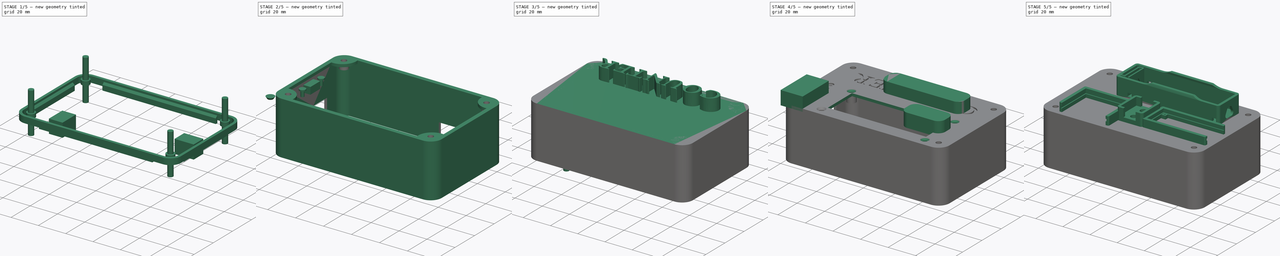
[diagram: build sequence overview — one tinted view per stage of 5, left to right]
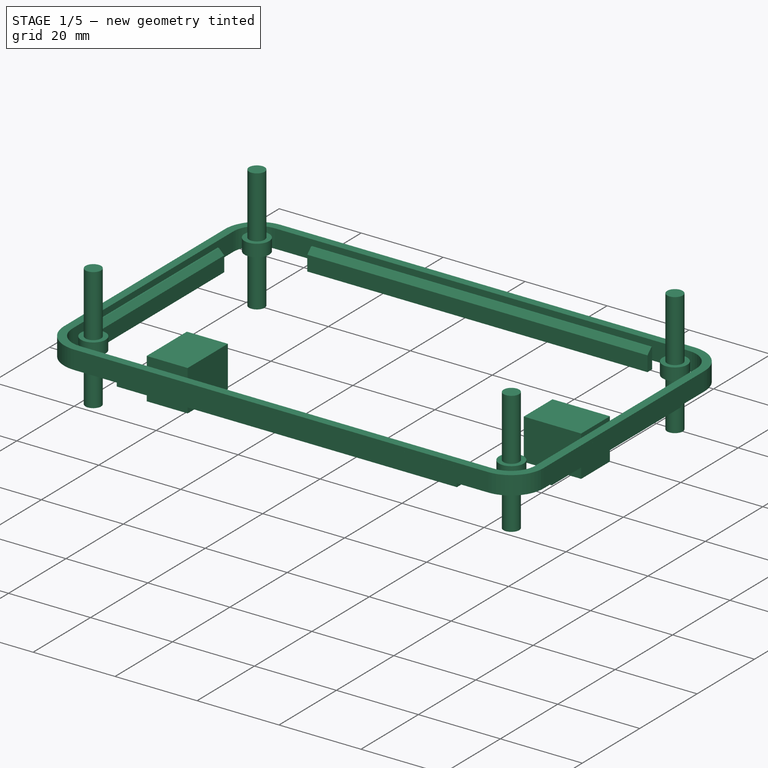
[diagram: stage 1 of 5 — iso view after this stage's code; geometry added in this stage tinted green]
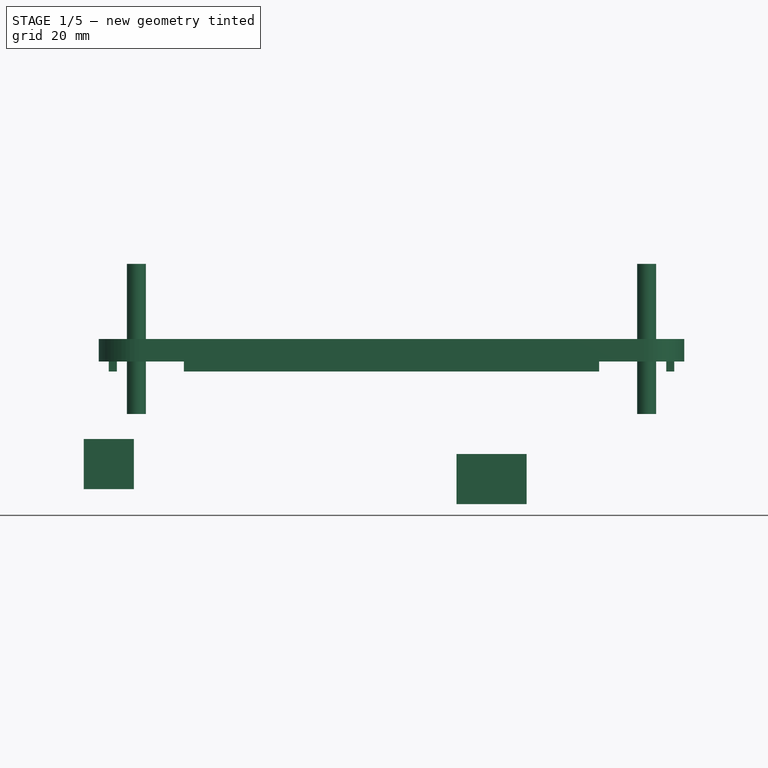
[diagram: stage 1 of 5 — front view after this stage's code; geometry added in this stage tinted green]
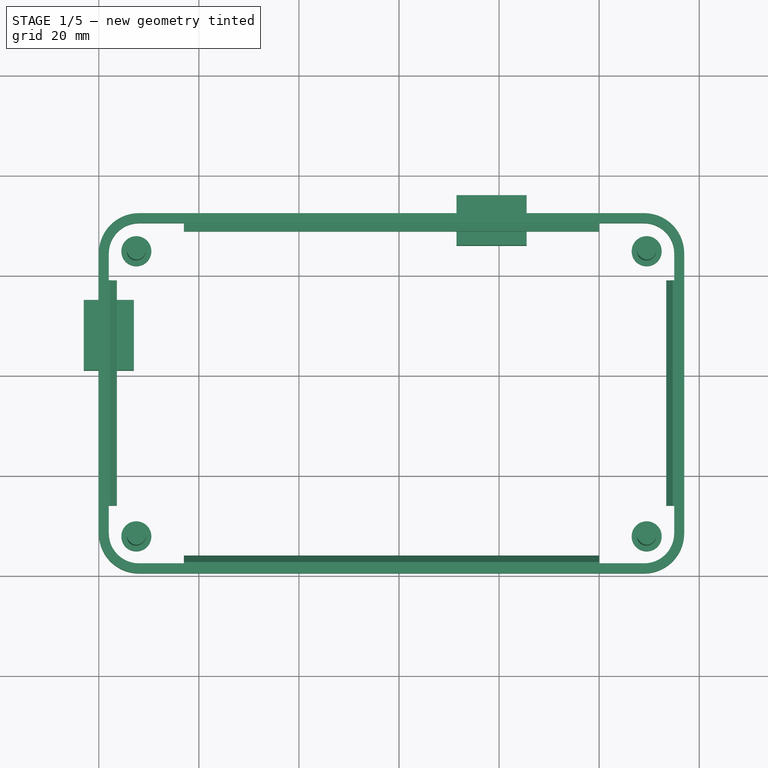
[diagram: stage 1 of 5 — top view after this stage's code; geometry added in this stage tinted green]
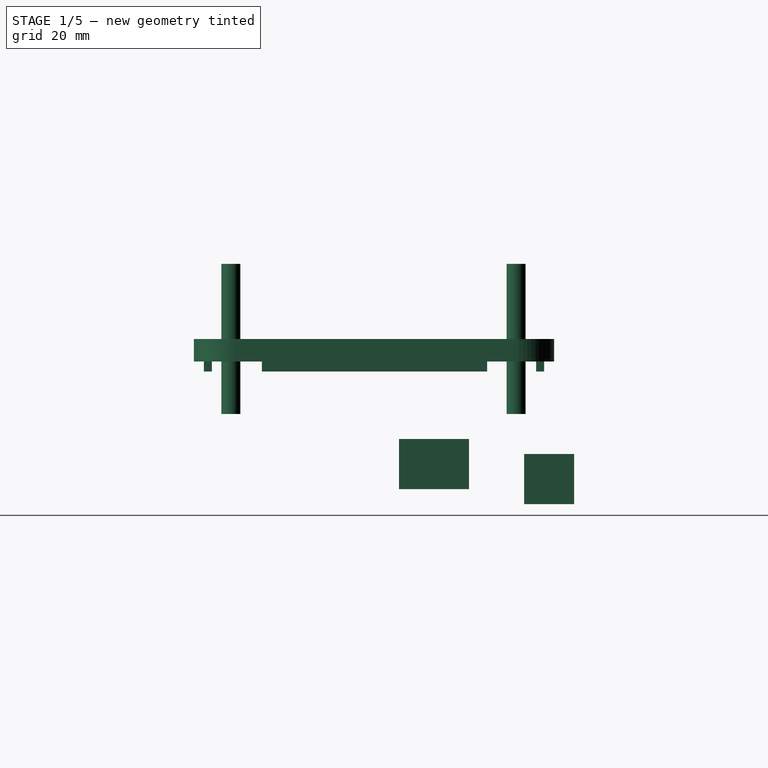
[diagram: stage 1 of 5 — right view after this stage's code; geometry added in this stage tinted green]
FCSTD DOCUMENT  (FreeCAD 0.19R)
Label: top
License: All rights reserved
LicenseURL: http://en.wikipedia.org/wiki/All_rights_reserved
objects: Part::Feature×15, Part::FeaturePython×15, Part::MultiFuse×8, Part::Box×6, Part::Cylinder×5, Part::Cut×5, PartDesign::Pad×4, PartDesign::Body×4, Part::Fillet×4, PartDesign::FeatureBase×3, Sketcher::SketchObject×3, Part::Plane×2, App::DocumentObjectGroup×2, App::Part×2, PartDesign::ShapeBinder×1, Part::Part2DObjectPython×1, Part::Extrusion×1, Part::Cone×1
note: 76 computed .brp shape members not serialized (recipe doc carries the construction recipe); baked Part::Feature solids carry a one-line shape summary decoded from their .brp

FEATURE [Part::Feature] Top_v2001001001
  Placement = pos=(99,-23,-24.5) rot=(0,0,1;0rad)
  shape: bbox 117 x 72 x 22 mm, 1170 faces, 0 solids (baked)
FEATURE [Part::Feature] Fusion015001  label="arduino nano mockup"
  Placement = pos=(-75,43,28) rot=(0,0,1;3.14159rad)
  shape: bbox 46.3 x 18 x 18.5 mm, 701 faces (baked)
FEATURE [Part::Plane] Plane
  AttacherType = Attacher::AttachEngine3D
  Length = 200
  Width = 100
FEATURE [Part::FeaturePython] Slice  # WARN: FeaturePython — macro-defined, semantics opaque (R4)
  Base = -> Top_v2001001001
  Mode = 1
  Tolerance = 0
  Tools = -> [Plane]
FEATURE [Part::FeaturePython] Slice_child0  label="Slice.0"  # WARN: FeaturePython — macro-defined, semantics opaque (R4)
  Base = -> Slice
  FilterType = 1
  Invert = false
  OverrideMaxVal = 0
  WindowFrom = 80
  WindowTo = 100
  items = 0
FEATURE [Part::FeaturePython] Slice_child1  label="Slice.1"  # WARN: FeaturePython — macro-defined, semantics opaque (R4)
  Base = -> Slice
  FilterType = 1
  Invert = false
  OverrideMaxVal = 0
  WindowFrom = 80
  WindowTo = 100
  items = 1
FEATURE [App::DocumentObjectGroup] GrExplode_Slice  label="Exploded Slice"
  Group = -> [Slice_child0,Slice_child1]
FEATURE [Part::Feature] Slice_child1001  label="middle perimeter"
  shape: bbox 117 x 72 x 6.5 mm, 141 faces, 0 solids (baked)
FEATURE [Part::Feature] Slice_child1001_Face19
  Placement = pos=(99,-23,-20) rot=(0,0,1;0rad)
  shape: bbox 117 x 72 x 2e-07 mm, 1 faces, 0 solids (baked)
FEATURE [Part::FeaturePython] Solid  label="middle perimeter solid"  # WARN: FeaturePython — macro-defined, semantics opaque (R4)
  Faces = -> [Slice_child1001,Slice_child1001_Face19]
  ShapeStatus = Solid
FEATURE [PartDesign::FeatureBase] BaseFeature
  BaseFeature = -> Solid
FEATURE [PartDesign::Body] Body  label="middle perimeter plane"
  BaseFeature = -> Solid
  Group = -> [BaseFeature,Sketch,Pad]
  Origin = -> Origin
  Tip = -> Pad
FEATURE [Part::Cylinder] Cylinder  label="bolt hole"
  Angle = 360
  AttacherType = Attacher::AttachEngine3D
  Height = 30
  Placement = pos=(7.5,7.4,-15) rot=(0,0,1;0rad)
  Radius = 1.9
  expr: .Placement.Base.z = -Height / 2
FEATURE [App::Part] Part001  label="middle plate"
  Group = -> [Cut002002007018]
  Origin = -> Origin003
FEATURE [Part::Plane] Plane001
  AttacherType = Attacher::AttachEngine3D
  Length = 200
  Placement = pos=(0,0,-1) rot=(0,0,1;0rad)
  Width = 100
FEATURE [Part::FeaturePython] Slice001  # WARN: FeaturePython — macro-defined, semantics opaque (R4)
  Base = -> Solid
  Mode = 1
  Tolerance = 0
  Tools = -> [Plane001]
FEATURE [PartDesign::Body] Body003
  BaseFeature = -> Clone001
  Group = -> [BaseFeature002,Sketch003,Pad003]
  Origin = -> Origin005
  Tip = -> Pad003
FEATURE [Part::Cylinder] Cylinder004  label="bolt stand001"
  Angle = 360
  AttacherType = Attacher::AttachEngine3D
  Height = 3
  Placement = pos=(7.5,7.4,0) rot=(0,0,1;0rad)
  Radius = 3
FEATURE [Part::FeaturePython] Array004  label="bolt stand array001"  # Draft array (typed FeaturePython)
  Angle = 360
  ArrayType = 0
  Axis = (0,0,1)
  Base = -> Cylinder004
  Center = (0,0,0)
  Count = 4
  ExpandArray = false
  Fuse = false
  IntervalAxis = (0,0,0)
  IntervalX = (102,0,0)
  IntervalY = (0,57,0)
  IntervalZ = (0,0,100)
  NumberCircles = 3
  NumberPolar = 5
  NumberX = 2
  NumberY = 2
  NumberZ = 1
  Placement = pos=(0,0,-3) rot=(0,0,1;0rad)
  PlacementList = 4 placements: [(7.5,7.4,0),(7.5,64.4,0),(109.5,7.4,0),(109.5,64.4,0)]
  RadialDistance = 50
  ScaleList = (4) [(1,1,1),(1,1,1),(1,1,1),(1,1,1)]
  Symmetry = 1
  TangentialDistance = 25
  expr: .Placement.Base.z = -<<bolt stand001>>.Height
FEATURE [Part::FeaturePython] Array005  label="bolt hole array001"  # Draft array (typed FeaturePython)
  Angle = 360
  ArrayType = 0
  Axis = (0,0,1)
  Base = -> Cylinder
  Center = (0,0,0)
  Count = 4
  ExpandArray = false
  Fuse = false
  IntervalAxis = (0,0,0)
  IntervalX = (102,0,0)
  IntervalY = (0,57,0)
  IntervalZ = (0,0,100)
  NumberCircles = 3
  NumberPolar = 5
  NumberX = 2
  NumberY = 2
  NumberZ = 1
  PlacementList = 4 placements: [(7.5,7.4,-15),(7.5,64.4,-15),(109.5,7.4,-15),(109.5,64.4,-15)]
  RadialDistance = 50
  ScaleList = (4) [(1,1,1),(1,1,1),(1,1,1),(1,1,1)]
  Symmetry = 1
  TangentialDistance = 25
FEATURE [Part::Feature] Solid001  label="middle perimeter solid001"
  Placement = pos=(0,0,-29) rot=(0,0,1;0rad)
  shape: bbox 117 x 72 x 6.5 mm, 142 faces (baked)
FEATURE [Part::Box] Box004  label="arduino usb hole"
  AttacherType = Attacher::AttachEngine3D
  Height = 10
  Length = 10
  Placement = pos=(-3,41,-30) rot=(0,0,1;0rad)
  Width = 14
FEATURE [Part::Box] Box005  label="lion manager hole"
  AttacherType = Attacher::AttachEngine3D
  Height = 10
  Length = 14
  Placement = pos=(71.5,66,-33) rot=(0,0,1;0rad)
  Width = 10
FEATURE [Part::MultiFuse] Fusion015008  label="border hole fusion"
  Shapes = -> [Box004,Array005,Box005]
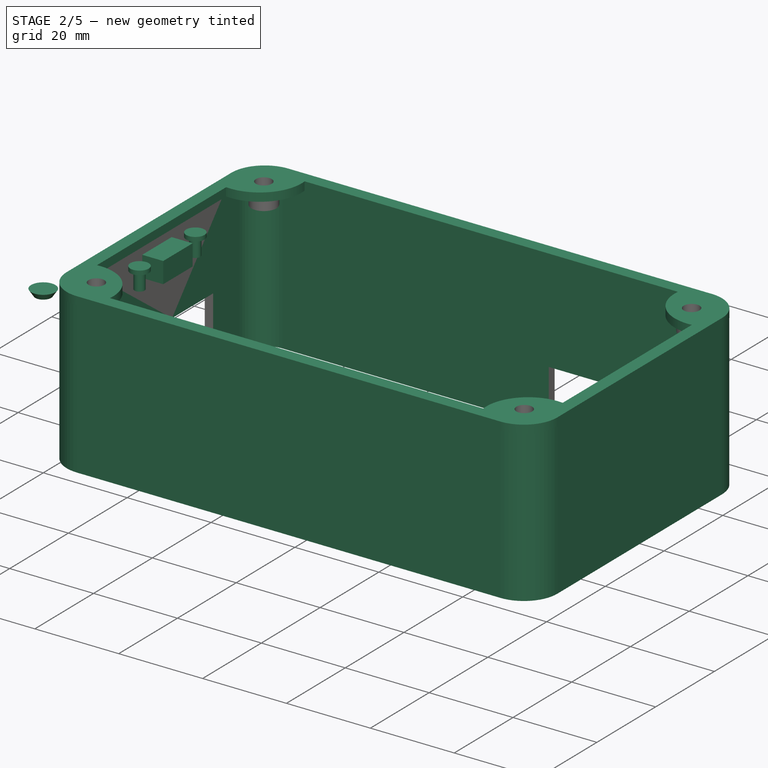
[diagram: stage 2 of 5 — iso view after this stage's code; geometry added in this stage tinted green]
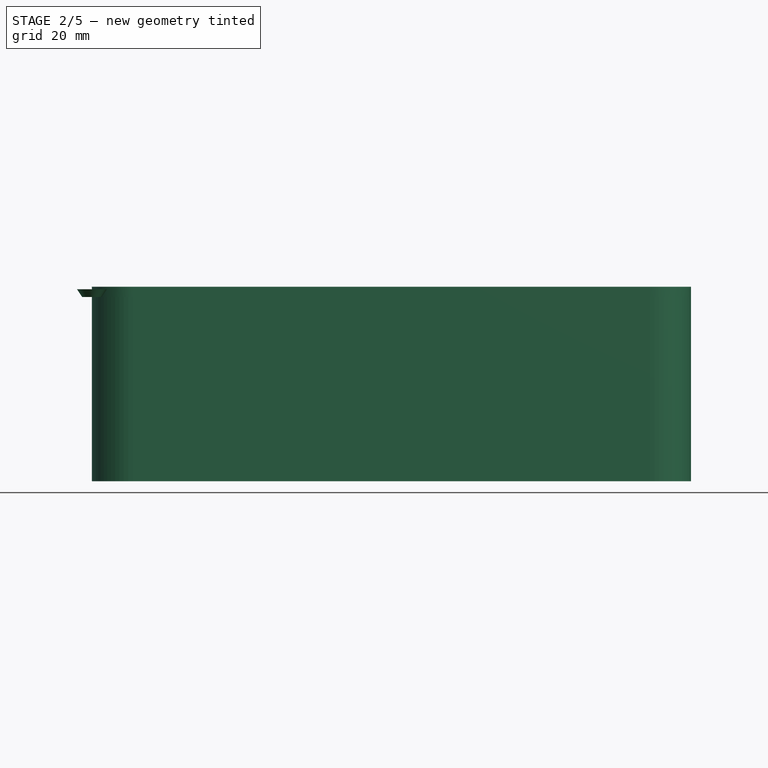
[diagram: stage 2 of 5 — front view after this stage's code; geometry added in this stage tinted green]
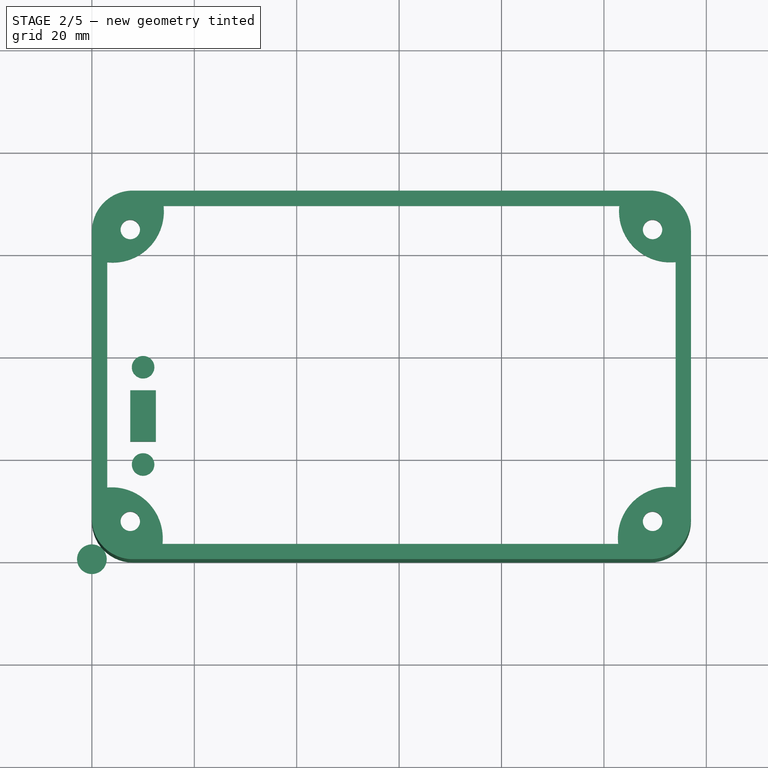
[diagram: stage 2 of 5 — top view after this stage's code; geometry added in this stage tinted green]
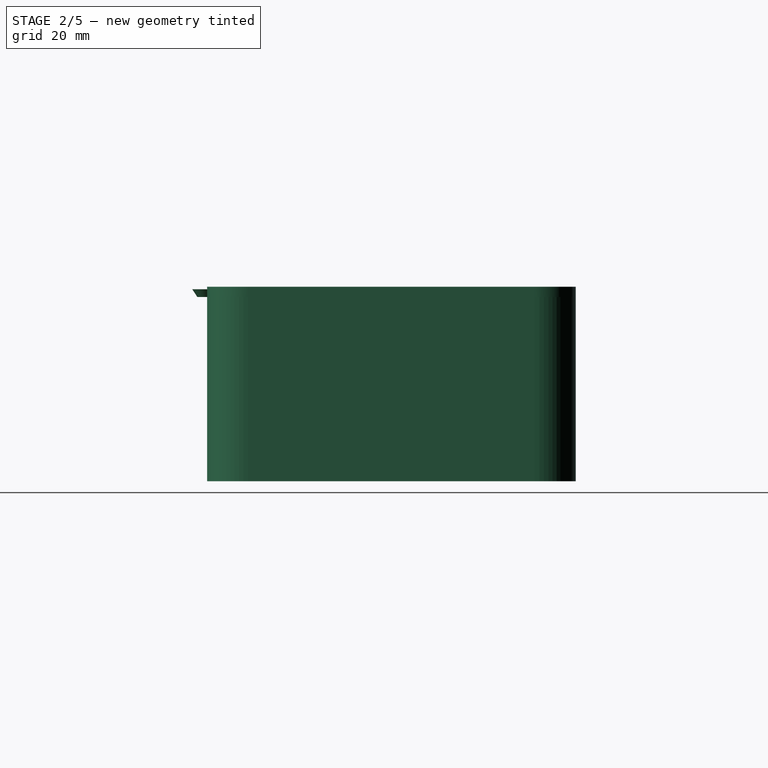
[diagram: stage 2 of 5 — right view after this stage's code; geometry added in this stage tinted green]
FEATURE [Part::FeaturePython] Slice001_child0  label="Slice001.0"  # WARN: FeaturePython — macro-defined, semantics opaque (R4)
  Base = -> Slice001
  FilterType = 1
  Invert = false
  OverrideMaxVal = 0
  WindowFrom = 80
  WindowTo = 100
  items = 0
FEATURE [Part::Feature] Cut002002007020001  label="16x2 lcd mockup"
  Placement = pos=(103,40,-10) rot=(0,0,1;3.14159rad)
  shape: bbox 80.4 x 36.4 x 12.3 mm, 15 faces (baked)
FEATURE [Part::Feature] Cut023001  label="switch holes"
  shape: bbox 5 x 21.4 x 5 mm, 12 faces, 3 solids (baked)
FEATURE [Part::FeaturePython] Clone001  label="scaled middle perimeter"  # Draft clone (typed FeaturePython)
  AttacherType = Attacher::AttachEngine3D
  Fuse = false
  Objects = -> [Slice001_child0]
  Scale = (1,1,36)
FEATURE [Part::Cone] Cone
  Angle = 360
  AttacherType = Attacher::AttachEngine3D
  Height = 1.5
  Radius1 = 1.9
  Radius2 = 2.9
FEATURE [Part::Cylinder] Cylinder003  label="bolt head"
  Angle = 360
  AttacherType = Attacher::AttachEngine3D
  Height = 1
  Placement = pos=(0,-9.5,4) rot=(0,0,1;0rad)
  Radius = 2.2
FEATURE [Part::FeaturePython] Array003  label="bolt head array"  # Draft array (typed FeaturePython)
  Angle = 360
  ArrayType = 0
  Axis = (0,0,1)
  Base = -> Cylinder003
  Center = (0,0,0)
  Count = 2
  ExpandArray = false
  Fuse = false
  IntervalAxis = (0,0,0)
  IntervalX = (100,0,0)
  IntervalY = (0,19,0)
  IntervalZ = (0,0,100)
  NumberCircles = 3
  NumberPolar = 5
  NumberX = 1
  NumberY = 2
  NumberZ = 1
  PlacementList = 2 placements: [(0,-9.5,4),(0,9.5,4)]
  RadialDistance = 50
  ScaleList = (2) [(1,1,1),(1,1,1)]
  Symmetry = 1
  TangentialDistance = 25
FEATURE [Part::MultiFuse] Fusion015006  label="switch holes fusion"
  Placement = pos=(10,28,-3) rot=(0,0,1;3.14159rad)
  Shapes = -> [Cut023001,Array003]
FEATURE [App::Part] Part  label="top part"
  Group = -> [Cut002002007019]
  Origin = -> Origin002
FEATURE [PartDesign::FeatureBase] BaseFeature002
  BaseFeature = -> Clone001
FEATURE [Sketcher::SketchObject] Sketch003
  ExternalGeometry = -> [BaseFeature]
  FullyConstrained = false
  MapMode = 5
  Support = -> [XY_Plane004]
  sketch-geometry (16):
    g0: ArcOfCircle CenterX=8 CenterY=64 CenterZ=0 NormalX=0 NormalY=0 NormalZ=1 AngleXU=0 Radius=8 StartAngle=1.5708 EndAngle=3.14159
    g1: ArcOfCircle CenterX=109 CenterY=64 CenterZ=0 NormalX=0 NormalY=0 NormalZ=1 AngleXU=0 Radius=8 StartAngle=4e-16 EndAngle=1.5708
    g2: ArcOfCircle CenterX=109 CenterY=8 CenterZ=0 NormalX=0 NormalY=0 NormalZ=1 AngleXU=0 Radius=8 StartAngle=4.71239 EndAngle=6.28319
    g3: ArcOfCircle CenterX=8 CenterY=8 CenterZ=0 NormalX=0 NormalY=0 NormalZ=1 AngleXU=0 Radius=8 StartAngle=3.14159 EndAngle=4.71239
    g4: LineSegment StartX=0 StartY=64 StartZ=0 EndX=0 EndY=8 EndZ=0
    g5: LineSegment StartX=8 StartY=0 StartZ=0 EndX=109 EndY=0 EndZ=0
    g6: LineSegment StartX=117 StartY=8 StartZ=0 EndX=117 EndY=64 EndZ=0
    g7: LineSegment StartX=109 StartY=72 StartZ=0 EndX=8 EndY=72 EndZ=0
    g8: LineSegment StartX=3 StartY=58 StartZ=0 EndX=3 EndY=14 EndZ=0
    g9: LineSegment StartX=13.7936 StartY=3 StartZ=0 EndX=102.794 EndY=3 EndZ=0
    g10: LineSegment StartX=114 StartY=14.0532 StartZ=0 EndX=114 EndY=58.0532 EndZ=0
    g11: LineSegment StartX=103 StartY=69 StartZ=0 EndX=14 EndY=69 EndZ=0
    g12: ArcOfCircle CenterX=4.0559 CenterY=67.9441 CenterZ=0 NormalX=0 NormalY=0 NormalZ=1 AngleXU=0 Radius=10 StartAngle=4.6066 EndAngle=6.38897
    g13: ArcOfCircle CenterX=3.84745 CenterY=4.03597 CenterZ=0 NormalX=0 NormalY=0 NormalZ=1 AngleXU=0 Radius=10 StartAngle=6.1794 EndAngle=7.93883
    g14: ArcOfCircle CenterX=112.729 CenterY=4.13428 CenterZ=0 NormalX=0 NormalY=0 NormalZ=1 AngleXU=0 Radius=10 StartAngle=1.44336 EndAngle=3.25527
    g15: ArcOfCircle CenterX=112.95 CenterY=67.9979 CenterZ=0 NormalX=0 NormalY=0 NormalZ=1 AngleXU=0 Radius=10 StartAngle=3.04121 EndAngle=4.81762
  constraints (49):
    c: Tangent(g0,g-3) = 1.5708
    c: Tangent(g0,g-4) = 1.5708
    c: Tangent(g1,g-3) = 1.5708
    c: Tangent(g1,g-6) = 1.5708
    c: Tangent(g3,g-5) = -1.5708
    c: Tangent(g3,g-4) = 1.5708
    c: Tangent(g2,g-6) = 1.5708
    c: Tangent(g2,g-5) = -1.5708
    c: Coincident(g4,g0)
    c: Coincident(g4,g3)
    c: Vertical(g4)
    c: Coincident(g5,g3)
    c: Coincident(g5,g2)
    c: Coincident(g6,g2)
    c: Coincident(g6,g1)
    c: Vertical(g6)
    c: Coincident(g7,g1)
    c: Coincident(g7,g0)
    c: Horizontal(g7)
    c: Vertical(g8)
    c: Vertical(g10)
    c: Horizontal(g11)
    c: Horizontal(g9)
    c: Equal(g9,g11)
    c: Equal(g8,g10)
    c: DistanceX(g0,g11) = 14
    c: DistanceX(g11,g1) = 14
    c: DistanceY(g3,g8) = 14
    c: DistanceY(g8,g0) = 14
    c: DistanceX(g0,g8) = 3
    c: DistanceX(g10,g1) = 3
    c: DistanceY(g11,g0) = 3
    c: DistanceY(g3,g9) = 3
    c: Coincident(g12,g8)
    c: Coincident(g12,g11)
    c: DistanceY(g1,g12) = 3.9441
    c: Coincident(g13,g8)
    c: Coincident(g13,g9)
    c: Coincident(g14,g9)
    c: Coincident(g14,g10)
    c: Coincident(g15,g11)
    c: Coincident(g15,g10)
    c: Radius(g12) = 10
    c: Radius(g13) = 10
    c: Radius(g14) = 10
    c: Radius(g15) = 10
    c: Equal(g12,g15)
    c: Equal(g13,g14)
    c: Equal(g14,g15)
FEATURE [PartDesign::Pad] Pad003
  BaseFeature = -> BaseFeature002
  Direction = (1,1,1)
  Length = 2
  Length2 = 100
  Profile = -> Sketch003
  Type = 0
FEATURE [Part::MultiFuse] Fusion015007  label="border fusion"
  Shapes = -> [Body003,Array004]
FEATURE [Part::Cut] Cut002002007020002  label="border frame cut"
  Base = -> Fusion015007
  Tool = -> Fusion015008
note: 1 file-system path scrubbed to <path> (originals preserved in the JSON sidecar)
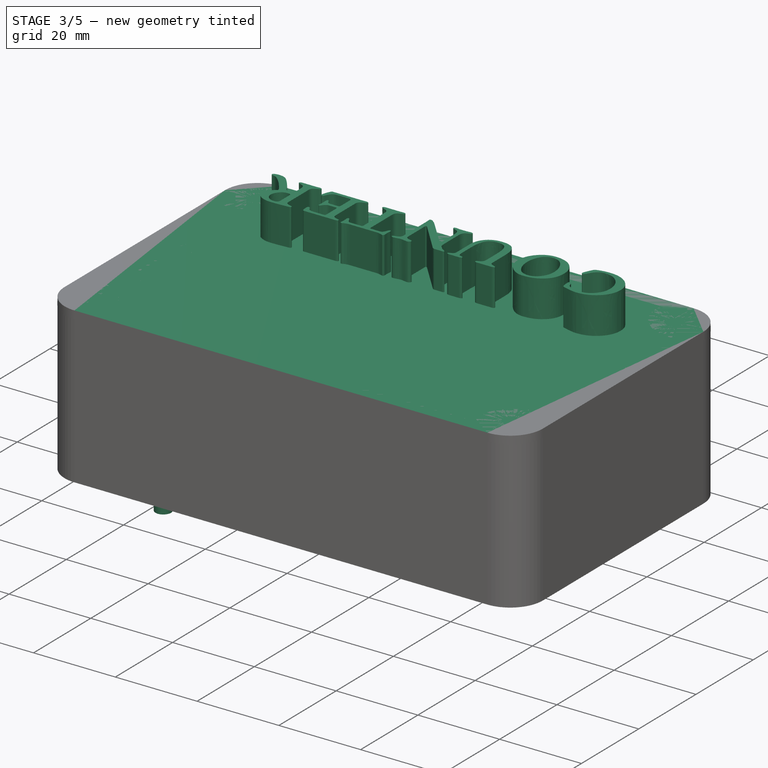
[diagram: stage 3 of 5 — iso view after this stage's code; geometry added in this stage tinted green]
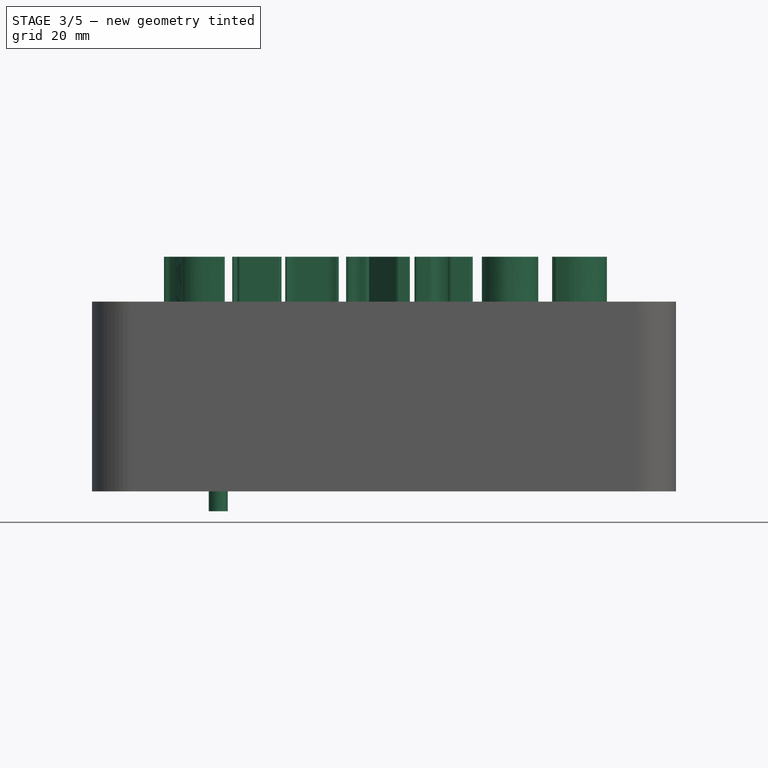
[diagram: stage 3 of 5 — front view after this stage's code; geometry added in this stage tinted green]
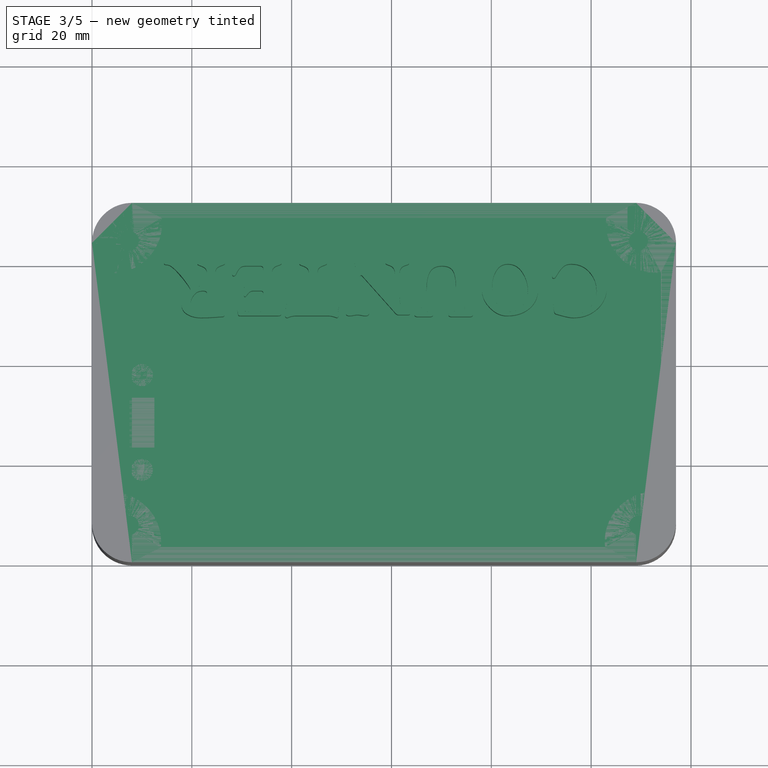
[diagram: stage 3 of 5 — top view after this stage's code; geometry added in this stage tinted green]
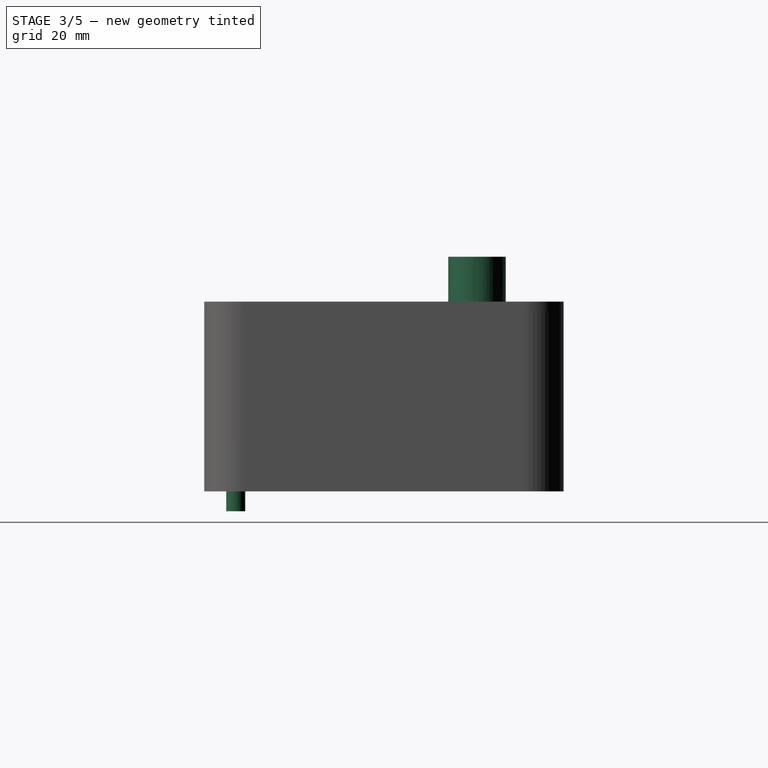
[diagram: stage 3 of 5 — right view after this stage's code; geometry added in this stage tinted green]
FEATURE [App::DocumentObjectGroup] GrExplode_Slice001  label="Exploded middle perimeter solid"
  Group = -> [Slice001_child0,Slice001_child1]
FEATURE [Part::FeaturePython] Clone  label="thin scaled middle perimeter"  # Draft clone (typed FeaturePython)
  AttacherType = Attacher::AttachEngine3D
  Fuse = false
  Objects = -> [Slice001_child0]
  Scale = (1,1,1)
FEATURE [PartDesign::FeatureBase] BaseFeature001
  BaseFeature = -> Clone
FEATURE [PartDesign::Pad] Pad002
  BaseFeature = -> BaseFeature001
  Direction = (1,1,1)
  Length = 2
  Length2 = 100
  Profile = -> Sketch
  Type = 0
FEATURE [PartDesign::Body] Body002  label="middle perimeter plane001"
  BaseFeature = -> Clone
  Group = -> [BaseFeature001,Pad002]
  Origin = -> Origin004
  Tip = -> Pad002
FEATURE [Part::Cylinder] Cylinder001  label="bolt hole001"
  Angle = 360
  AttacherType = Attacher::AttachEngine3D
  Height = 40
  Placement = pos=(0,0,-40) rot=(0,0,1;0rad)
  Radius = 1.9
  expr: .Placement.Base.z = -Height
FEATURE [Part::Cylinder] Cylinder002  label="bolt stand"
  Angle = 360
  AttacherType = Attacher::AttachEngine3D
  Height = 5
  Placement = pos=(25.3,6.3,-5) rot=(0,0,1;0rad)
  Radius = 3.1
  expr: Height = 3mm + Pad002.Length
  expr: .Placement.Base.z = -Height
FEATURE [Part::FeaturePython] Array002  label="lcd bolt hole array001"  # Draft array (typed FeaturePython)
  Angle = 360
  ArrayType = 0
  Axis = (0,0,1)
  Base = -> Cylinder002
  Center = (0,0,0)
  Count = 4
  ExpandArray = false
  Fuse = false
  IntervalAxis = (0,0,0)
  IntervalX = (75,0,0)
  IntervalY = (0,31,0)
  IntervalZ = (0,0,100)
  NumberCircles = 3
  NumberPolar = 5
  NumberX = 2
  NumberY = 2
  NumberZ = 1
  PlacementList = 4 placements: [(25.3,6.3,-5),(25.3,37.3,-5),(100.3,6.3,-5),(100.3,37.3,-5)]
  RadialDistance = 50
  ScaleList = (4) [(1,1,1),(1,1,1),(1,1,1),(1,1,1)]
  Symmetry = 1
  TangentialDistance = 25
FEATURE [Part::MultiFuse] Fusion015004  label="top body fusion"
  Shapes = -> [Body002,Array002]
FEATURE [Part::Part2DObjectPython] ShapeString  # Draft 2D object (typed FeaturePython)
  FontFile = <path>
  Placement = pos=(104,60,1) rot=(0,0,1;3.14159rad)
  Size = 6
  String = COUNTER
  Tracking = 1
FEATURE [Part::Extrusion] Extrude  label="text extrude"
  Base = -> ShapeString
  Dir = (0,0,1)
  DirMode = 2
  FaceMakerClass = Part::FaceMakerBullseye
  LengthFwd = 10
  LengthRev = 0
  Solid = false
  Symmetric = false
FEATURE [Part::MultiFuse] Fusion015005  label="bolt hole fusion"
  Placement = pos=(25.3,6.3,0) rot=(0,0,1;0rad)
  Shapes = -> [Cone,Cylinder001]
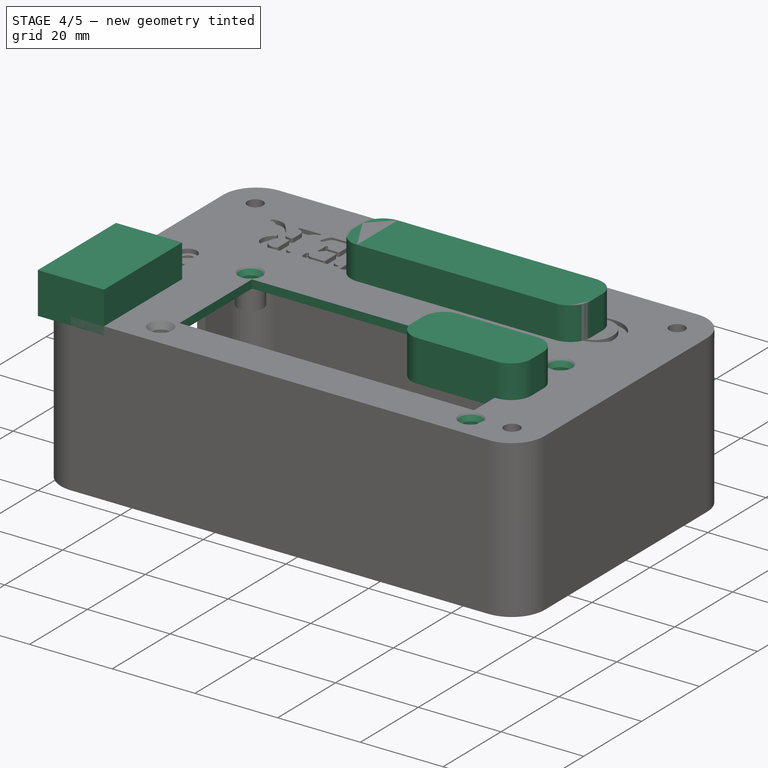
[diagram: stage 4 of 5 — iso view after this stage's code; geometry added in this stage tinted green]
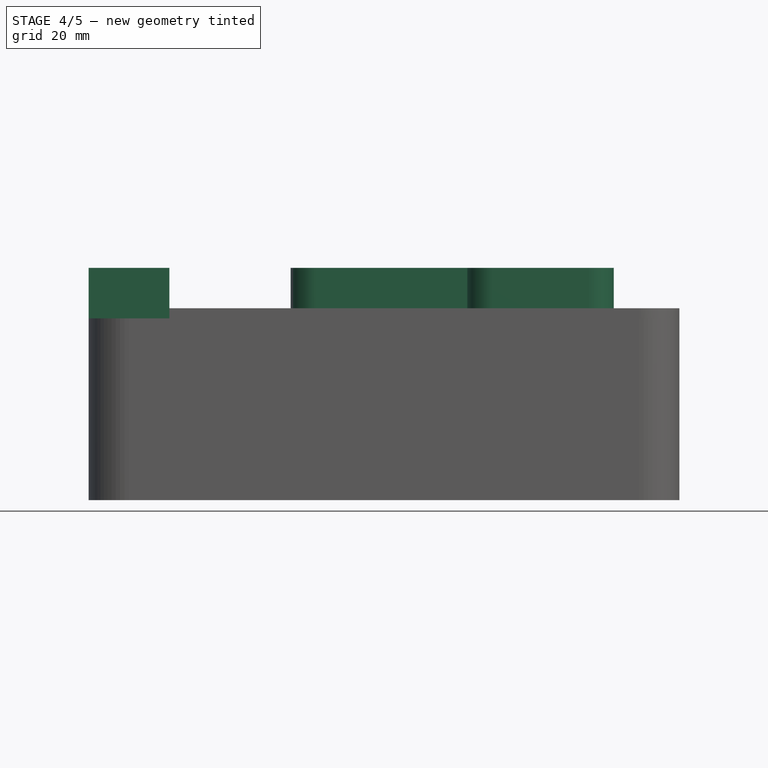
[diagram: stage 4 of 5 — front view after this stage's code; geometry added in this stage tinted green]
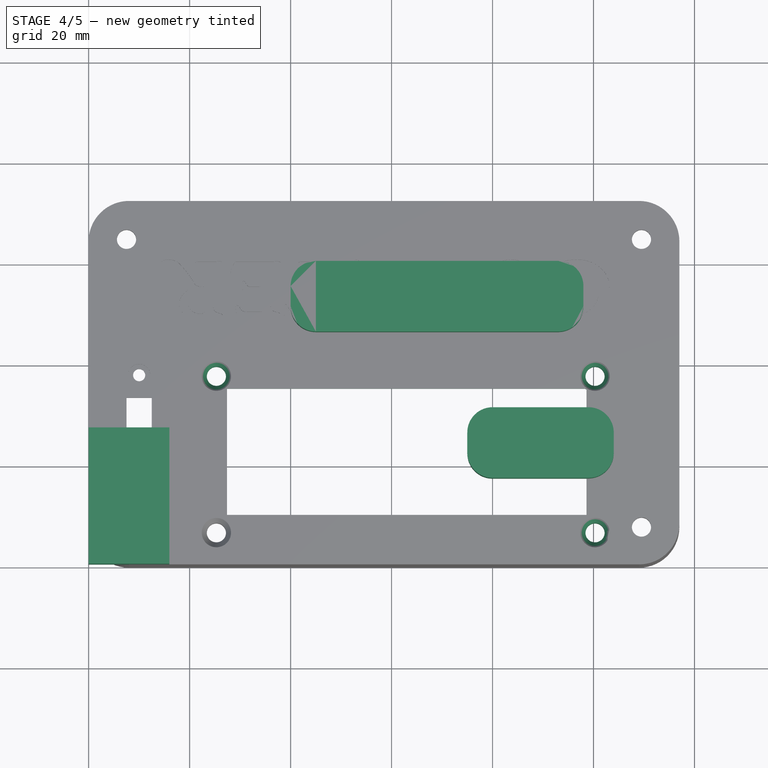
[diagram: stage 4 of 5 — top view after this stage's code; geometry added in this stage tinted green]
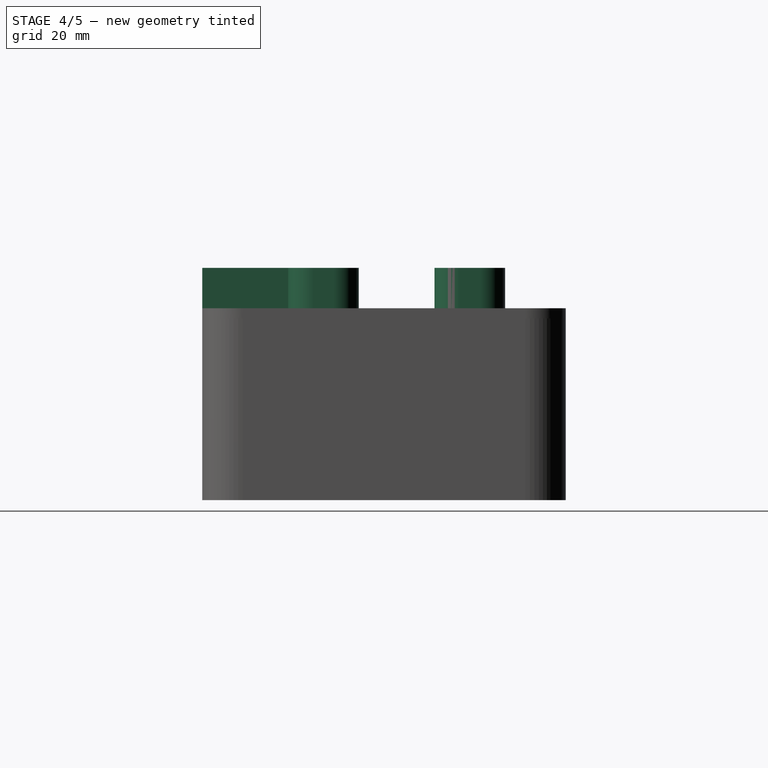
[diagram: stage 4 of 5 — right view after this stage's code; geometry added in this stage tinted green]
FEATURE [Part::FeaturePython] Array  label="bolt hole array"  # Draft array (typed FeaturePython)
  Angle = 360
  ArrayType = 0
  Axis = (0,0,1)
  Base = -> Cylinder
  Center = (0,0,0)
  Count = 4
  ExpandArray = false
  Fuse = false
  IntervalAxis = (0,0,0)
  IntervalX = (102,0,0)
  IntervalY = (0,57,0)
  IntervalZ = (0,0,100)
  NumberCircles = 3
  NumberPolar = 5
  NumberX = 2
  NumberY = 2
  NumberZ = 1
  PlacementList = 4 placements: [(7.5,7.4,-15),(7.5,64.4,-15),(109.5,7.4,-15),(109.5,64.4,-15)]
  RadialDistance = 50
  ScaleList = (4) [(1,1,1),(1,1,1),(1,1,1),(1,1,1)]
  Symmetry = 1
  TangentialDistance = 25
FEATURE [Part::Box] Box001  label="hole"
  AttacherType = Attacher::AttachEngine3D
  Height = 10
  Length = 16
  Width = 27
FEATURE [Part::Box] Box002  label="hole001"
  AttacherType = Attacher::AttachEngine3D
  Height = 10
  Length = 14
  Width = 29
FEATURE [Part::Fillet] Fillet002  label="hole fillet001"
  Base = -> Box002
  Edges = 4 edges r=5: [Edge1,Edge3,Edge5,Edge7]
  Placement = pos=(75,31,0) rot=(0,0,-1;1.5708rad)
FEATURE [Part::Box] Box003  label="hole002"
  AttacherType = Attacher::AttachEngine3D
  Height = 10
  Length = 14
  Width = 58
FEATURE [Part::Fillet] Fillet003  label="hole fillet002"
  Base = -> Box003
  Edges = 4 edges r=5: [Edge1,Edge3,Edge5,Edge7]
  Placement = pos=(40,60,0) rot=(0,0,-1;1.5708rad)
FEATURE [Part::FeaturePython] Slice001_child1  label="Slice001.1"  # WARN: FeaturePython — macro-defined, semantics opaque (R4)
  Base = -> Slice001
  FilterType = 1
  Invert = false
  OverrideMaxVal = 0
  WindowFrom = 80
  WindowTo = 100
  items = 1
FEATURE [Part::FeaturePython] Array001  label="lcd bolt hole array"  # Draft array (typed FeaturePython)
  Angle = 360
  ArrayType = 0
  Axis = (0,0,1)
  Base = -> Fusion015005
  Center = (0,0,0)
  Count = 4
  ExpandArray = false
  Fuse = false
  IntervalAxis = (0,0,0)
  IntervalX = (75,0,0)
  IntervalY = (0,31,0)
  IntervalZ = (0,0,100)
  NumberCircles = 3
  NumberPolar = 5
  NumberX = 2
  NumberY = 2
  NumberZ = 1
  Placement = pos=(0,0,0.5) rot=(0,0,1;0rad)
  PlacementList = 4 placements: [(25.3,6.3,0),(25.3,37.3,0),(100.3,6.3,0),(100.3,37.3,0)]
  RadialDistance = 50
  ScaleList = (4) [(1,1,1),(1,1,1),(1,1,1),(1,1,1)]
  Symmetry = 1
  TangentialDistance = 25
FEATURE [Part::MultiFuse] Fusion015003  label="hole fusion001"
  Shapes = -> [Array001,Array,Cut002002007020001,Extrude,Fusion015006]
FEATURE [Part::Cut] Cut002002007019  label="top cut"
  Base = -> Fusion015004
  Tool = -> Fusion015003
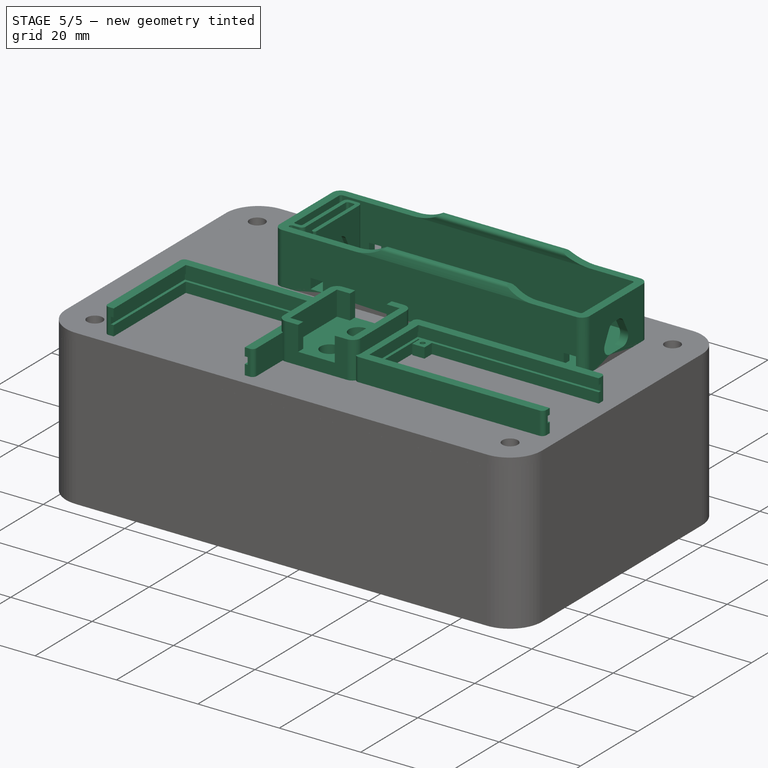
[diagram: stage 5 of 5 — iso view after this stage's code; geometry added in this stage tinted green]
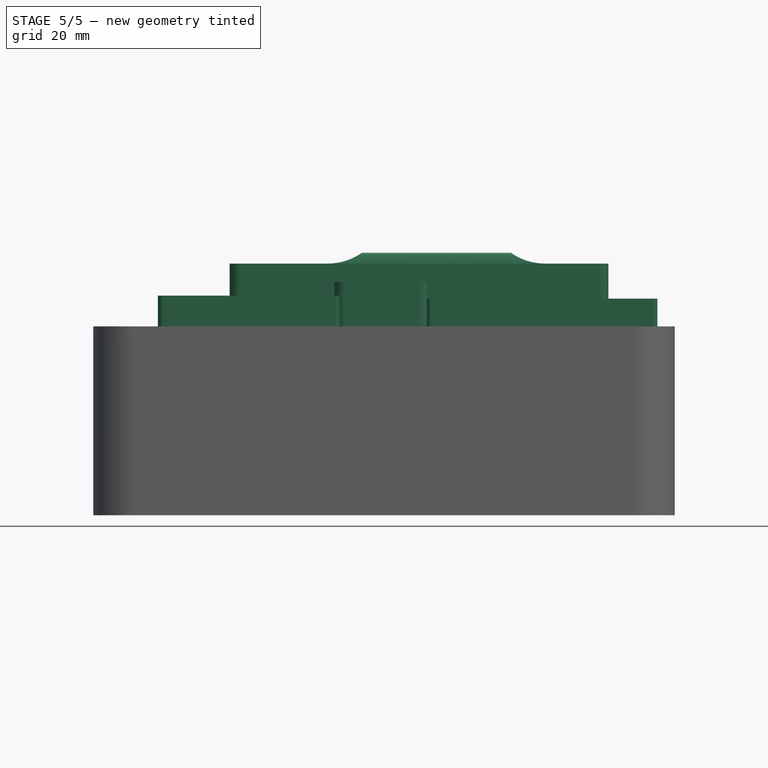
[diagram: stage 5 of 5 — front view after this stage's code; geometry added in this stage tinted green]
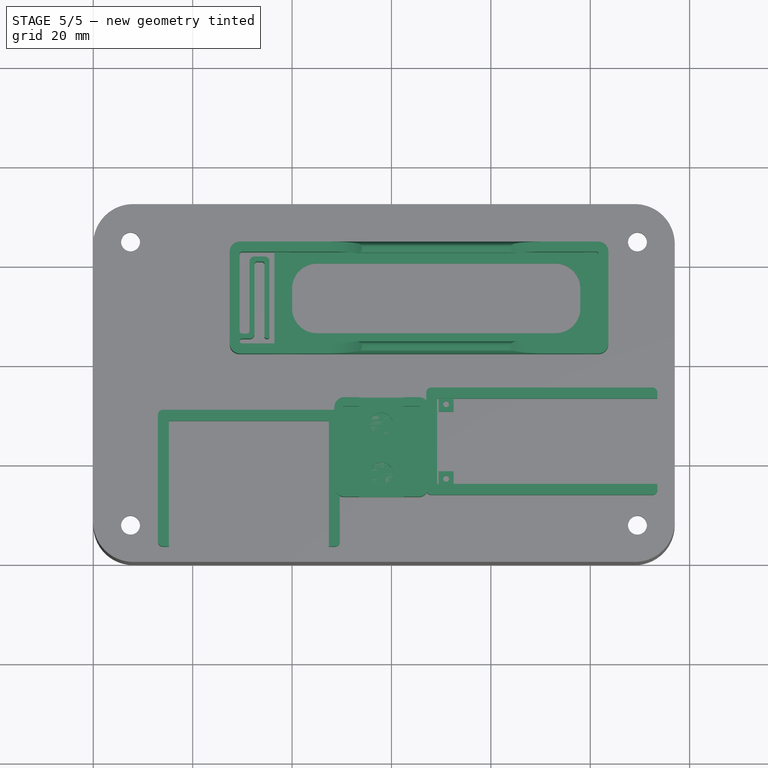
[diagram: stage 5 of 5 — top view after this stage's code; geometry added in this stage tinted green]
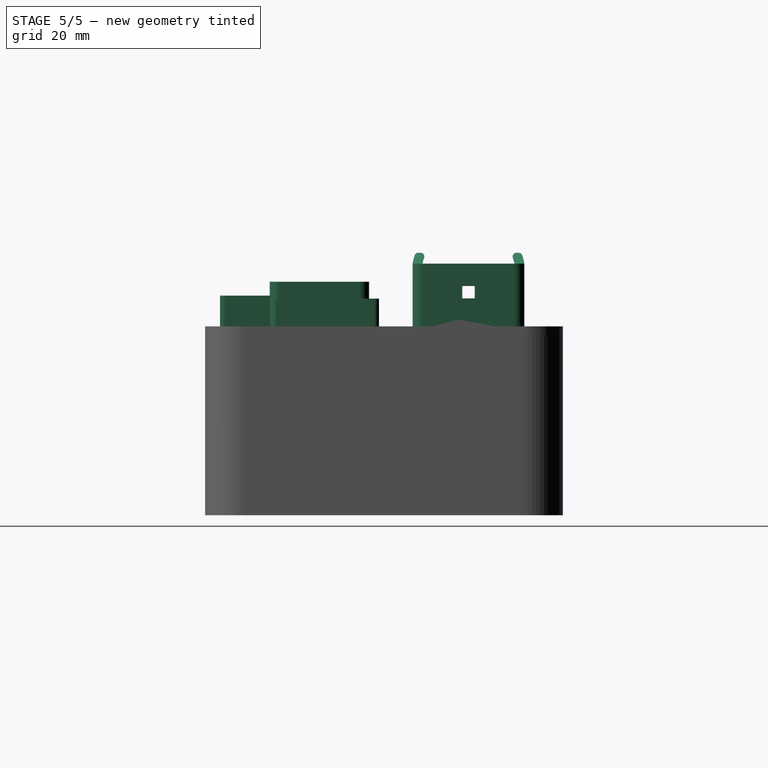
[diagram: stage 5 of 5 — right view after this stage's code; geometry added in this stage tinted green]
FEATURE [Sketcher::SketchObject] Sketch
  ExternalGeometry = -> [BaseFeature]
  FullyConstrained = true
  MapMode = 5
  Support = -> [XY_Plane]
  sketch-geometry (8):
    g0: ArcOfCircle CenterX=8 CenterY=64 CenterZ=0 NormalX=0 NormalY=0 NormalZ=1 AngleXU=0 Radius=8 StartAngle=1.5708 EndAngle=3.14159
    g1: ArcOfCircle CenterX=109 CenterY=64 CenterZ=0 NormalX=0 NormalY=0 NormalZ=1 AngleXU=0 Radius=8 StartAngle=0 EndAngle=1.5708
    g2: ArcOfCircle CenterX=109 CenterY=8 CenterZ=0 NormalX=0 NormalY=0 NormalZ=1 AngleXU=0 Radius=8 StartAngle=4.71239 EndAngle=6.28319
    g3: ArcOfCircle CenterX=8 CenterY=8 CenterZ=0 NormalX=0 NormalY=0 NormalZ=1 AngleXU=0 Radius=8 StartAngle=3.14159 EndAngle=4.71239
    g4: LineSegment StartX=2.15268e-11 StartY=64 StartZ=0 EndX=2.15268e-11 EndY=8 EndZ=0
    g5: LineSegment StartX=8 StartY=2.15268e-11 StartZ=0 EndX=109 EndY=1.3038e-12 EndZ=0
    g6: LineSegment StartX=117 StartY=8 StartZ=0 EndX=117 EndY=64 EndZ=0
    g7: LineSegment StartX=109 StartY=72 StartZ=0 EndX=8 EndY=72 EndZ=0
  constraints (19):
    c: Tangent(g0,g-3) = 1.5708
    c: Tangent(g0,g-4) = 1.5708
    c: Tangent(g1,g-3) = 1.5708
    c: Tangent(g1,g-6) = 1.5708
    c: Tangent(g3,g-5) = -1.5708
    c: Tangent(g3,g-4) = 1.5708
    c: Tangent(g2,g-6) = 1.5708
    c: Tangent(g2,g-5) = -1.5708
    c: Coincident(g4,g0)
    c: Coincident(g4,g3)
    c: Vertical(g4)
    c: Coincident(g5,g3)
    c: Coincident(g5,g2)
    c: Coincident(g6,g2)
    c: Coincident(g6,g1)
    c: Vertical(g6)
    c: Coincident(g7,g1)
    c: Coincident(g7,g0)
    c: Horizontal(g7)
FEATURE [PartDesign::Pad] Pad
  BaseFeature = -> BaseFeature
  Direction = (1,1,1)
  Length = 2
  Length2 = 100
  Profile = -> Sketch
  Type = 0
FEATURE [Part::Cut] Cut  label="middle perimeter cut"
  Base = -> Body
  Tool = -> Array
FEATURE [Part::Feature] Cut003008001  label="arduino nuno frame"
  Placement = pos=(67,35,0) rot=(0,0,-1;1.5708rad)
  shape: bbox 46.5 x 21.6 x 7.6 mm, 38 faces (baked)
FEATURE [Part::Feature] Cut002002007014  label="battery coontainer mockup"
  Placement = pos=(17,38,0) rot=(0,0,1;0rad)
  shape: bbox 80 x 29 x 30 mm, 13 faces (baked)
FEATURE [Part::Feature] Cut002002007015  label="lion manager frame"
  Placement = pos=(13,30.5,0) rot=(0,0,-1;1.5708rad)
  shape: bbox 36.6 x 27.5 x 8.2 mm, 22 faces (baked)
FEATURE [PartDesign::ShapeBinder] ShapeBinder
  Support = -> [Solid]
  TraceSupport = false
FEATURE [Sketcher::SketchObject] Sketch001
  ExternalGeometry = -> [ShapeBinder]
  FullyConstrained = false
  MapMode = 5
  Support = -> [XY_Plane001]
  sketch-geometry (8):
    g0: LineSegment StartX=8.27232 StartY=69 StartZ=0 EndX=109.829 EndY=69 EndZ=0
    g1: LineSegment StartX=114 StartY=64.8289 StartZ=0 EndX=114 EndY=7.23147 EndZ=0
    g2: LineSegment StartX=109.769 StartY=3 StartZ=0 EndX=8.27169 EndY=3 EndZ=0
    g3: LineSegment StartX=3.81142 StartY=64.5391 StartZ=0 EndX=3.81142 EndY=7.46027 EndZ=0
    g4: ArcOfCircle CenterX=8.27232 CenterY=64.5391 CenterZ=0 NormalX=0 NormalY=0 NormalZ=1 AngleXU=0 Radius=4.4609 StartAngle=1.5708 EndAngle=3.14159
    g5: ArcOfCircle CenterX=8.27169 CenterY=7.46027 CenterZ=0 NormalX=0 NormalY=0 NormalZ=1 AngleXU=0 Radius=4.46027 StartAngle=3.14159 EndAngle=4.71239
    g6: ArcOfCircle CenterX=109.769 CenterY=7.23147 CenterZ=0 NormalX=0 NormalY=0 NormalZ=1 AngleXU=0 Radius=4.23147 StartAngle=4.71239 EndAngle=6.28319
    g7: ArcOfCircle CenterX=109.829 CenterY=64.8289 CenterZ=0 NormalX=0 NormalY=0 NormalZ=1 AngleXU=0 Radius=4.17113 StartAngle=3e-16 EndAngle=1.5708
  constraints (15):
    c: Horizontal(g0)
    c: Vertical(g1)
    c: Horizontal(g2)
    c: Vertical(g3)
    c: Tangent(g0,g4) = 1.5708
    c: Tangent(g3,g4) = -1.5708
    c: Tangent(g3,g5) = -1.5708
    c: Tangent(g2,g5) = 1.5708
    c: Tangent(g2,g6) = 1.5708
    c: Tangent(g1,g6) = 1.5708
    c: Tangent(g1,g7) = 1.5708
    c: Tangent(g0,g7) = 1.5708
    c: DistanceY(g0,g-3) = 1
    c: DistanceY(g-8,g2) = 1
    c: DistanceX(g1,g-6) = 1
FEATURE [PartDesign::Pad] Pad001
  Direction = (1,1,1)
  Length = 1.5
  Length2 = 100
  Profile = -> Sketch001
  Type = 0
FEATURE [PartDesign::Body] Body001  label="middle plane body"
  Group = -> [Sketch001,ShapeBinder,Pad001]
  Origin = -> Origin001
  Tip = -> Pad001
FEATURE [Part::Cut] Cut002002007016  label="middle plate cut"
  Base = -> Body001
  Tool = -> Array
FEATURE [Part::Feature] _8650_X1001001_solid  label="18650_X1 (Solid)"
  Placement = pos=(62,53,-29) rot=(0,0,1;1.5708rad)
  shape: bbox 76.2 x 22.5 x 15.45 mm, 4230 faces (baked)
FEATURE [Part::Feature] Cut003002001  label="microsd frame"
  Placement = pos=(24.5,37,0) rot=(0,0,1;1.5708rad)
  shape: bbox 20.5 x 21.2 x 7.7 mm, 22 faces (baked)
FEATURE [Part::Feature] Cut003006001  label="hw-613 cut002"
  Placement = pos=(20,13,0) rot=(0,0,1;1.5708rad)
  shape: bbox 12 x 22.6 x 8.6 mm, 24 faces (baked)
FEATURE [Part::Feature] Cut002002007017  label="stm32bluepill frame"
  Placement = pos=(58,39,0) rot=(0,0,-1;1.5708rad)
  shape: bbox 55.5 x 26 x 6.7 mm, 22 faces (baked)
FEATURE [Part::Box] Box  label="wire hole"
  AttacherType = Attacher::AttachEngine3D
  Height = 10
  Length = 12
  Width = 20
FEATURE [Part::Fillet] Fillet  label="wire hole fillet"
  Base = -> Box
  Edges = 4 edges r=5: [Edge1,Edge3,Edge5,Edge7]
  Placement = pos=(7,31,0) rot=(0,0,1;0rad)
FEATURE [Part::Fillet] Fillet001  label="hole fillet"
  Base = -> Box001
  Edges = 4 edges r=5: [Edge1,Edge3,Edge5,Edge7]
  Placement = pos=(18,25,0) rot=(0,0,-1;1.5708rad)
FEATURE [Part::MultiFuse] Fusion015002  label="hole fusion"
  Shapes = -> [Fillet,Fillet001,Fillet003,Fillet002]
FEATURE [Part::Feature] Cut003001  label="tiny breadboard frame"
  Placement = pos=(58,23,2) rot=(0,0,1;0rad)
  shape: bbox 19 x 20 x 11 mm, 26 faces (baked)
FEATURE [Part::MultiFuse] Fusion  label="middle plate fusion"
  Shapes = -> [Cut003008001,Cut002002007015,Cut002002007016,_8650_X1001001_solid,Cut003001]
FEATURE [Part::Cut] Cut002002007018  label="middle plate cut001"
  Base = -> Fusion
  Tool = -> Fusion015002
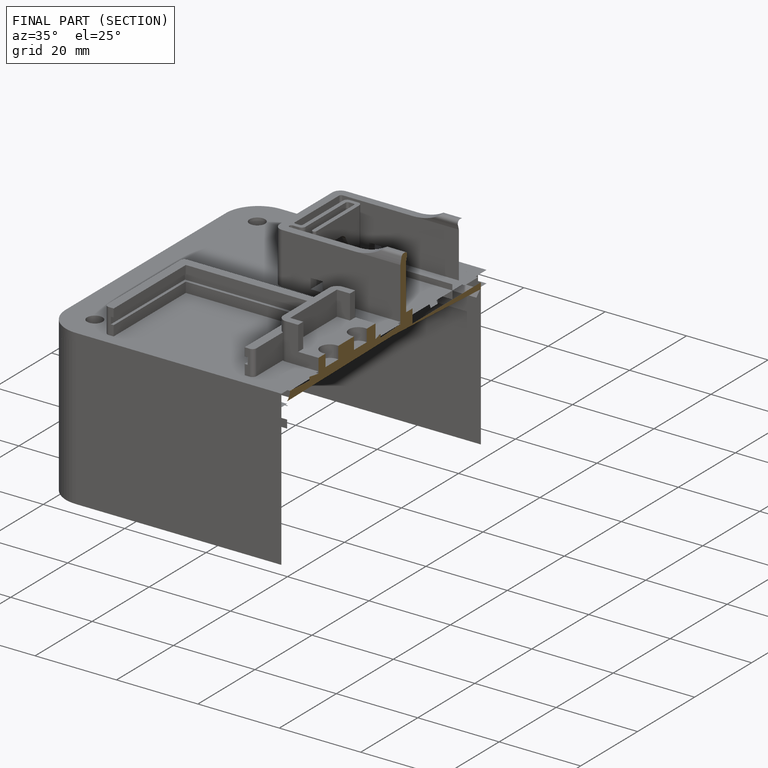
[diagram: finished part — half-section view (interior)]
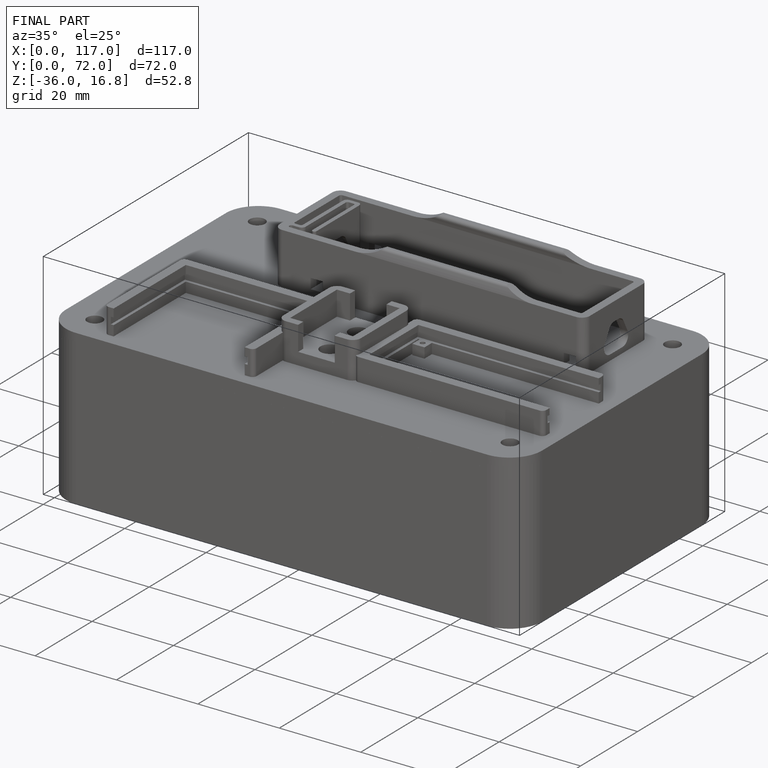
[diagram: finished part — iso view with bounding-box wireframe]
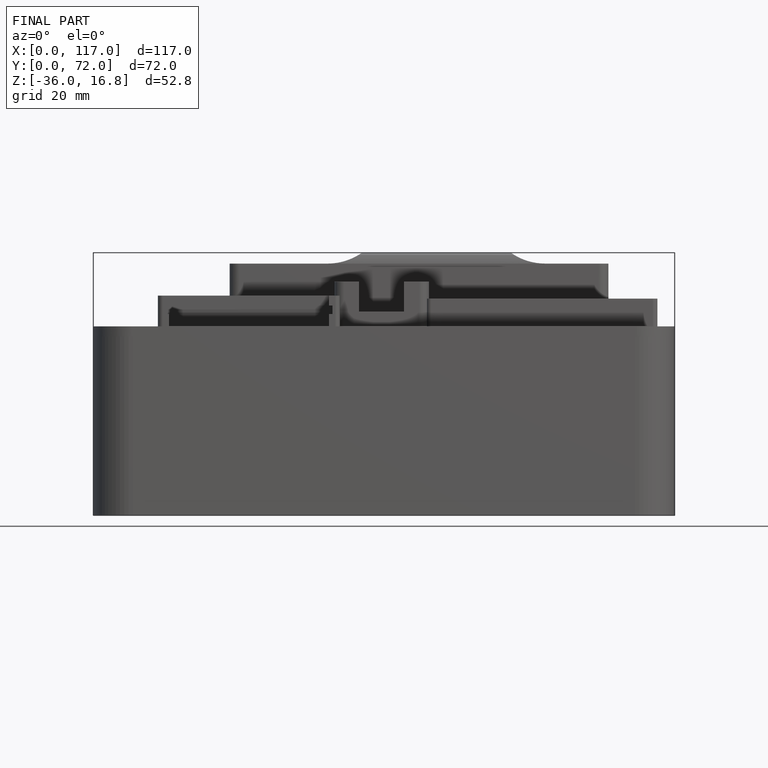
[diagram: finished part — front view with bounding-box wireframe]
